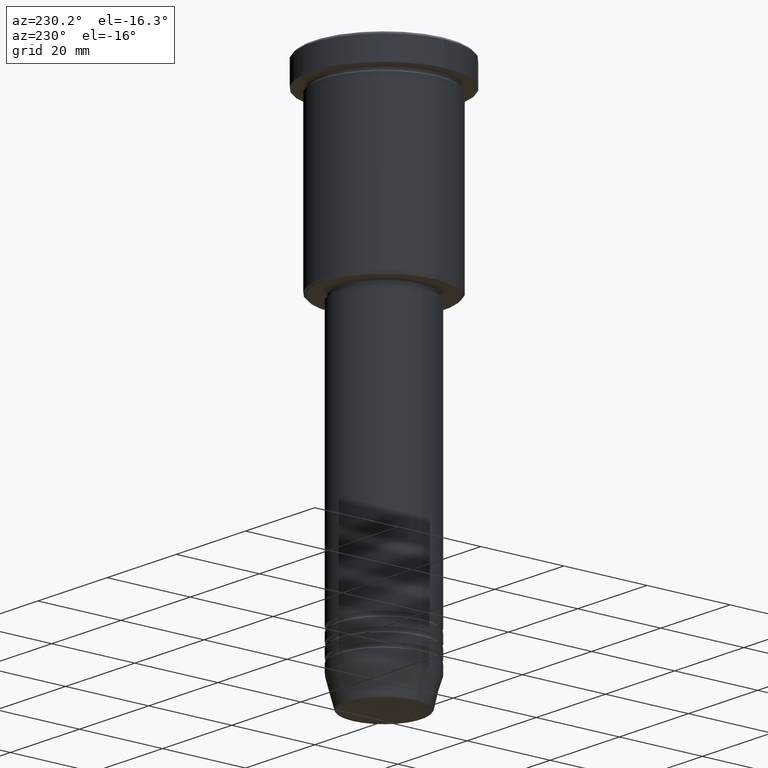
[diagram: clean part render]
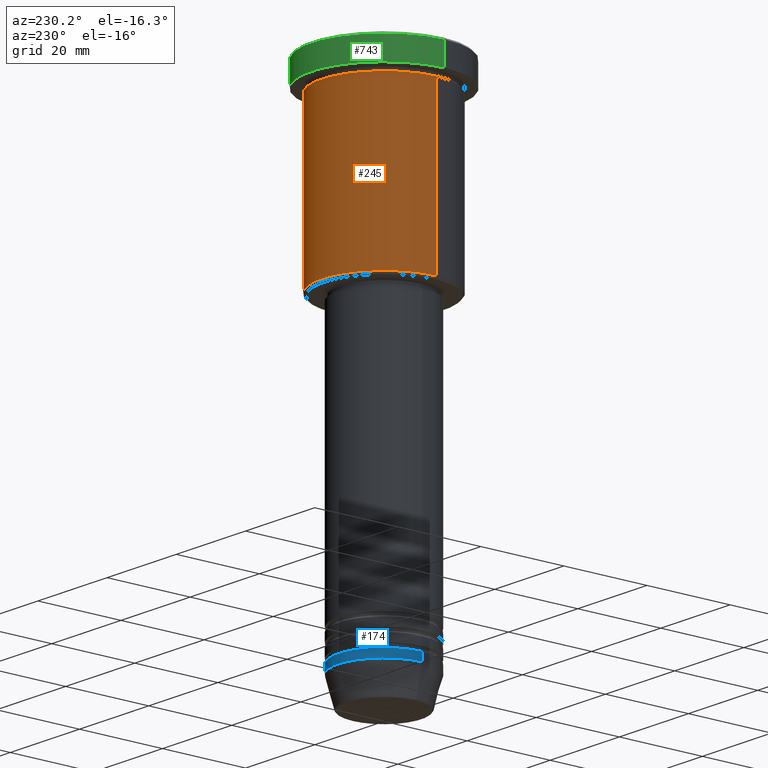
[diagram: same view with three faces highlighted in distinct colors, each labeled with its STEP entity id]
A machine part, auxiliary view with three faces highlighted in distinct colors.
Their STEP definitions:

[orange] entity #245 — the highlighted cylindrical surface (partial cylindrical patch) has radius 15 mm, axis along (-0, -0, 1).
#15 = ORIENTED_EDGE ( 'NONE', *, *, #636, .F. ) ;
#59 = LINE ( 'NONE', #1054, #1060 ) ;
#89 = ORIENTED_EDGE ( 'NONE', *, *, #868, .T. ) ;
#119 = EDGE_LOOP ( 'NONE', ( #140, #89, #552, #15 ) ) ;
#121 = AXIS2_PLACEMENT_3D ( 'NONE', #1122, #483, #783 ) ;
#136 = CYLINDRICAL_SURFACE ( 'NONE', #121, 15.00000000000000000 ) ;
#140 = ORIENTED_EDGE ( 'NONE', *, *, #959, .T. ) ;
#228 = VERTEX_POINT ( 'NONE', #829 ) ;
#245 = ADVANCED_FACE ( 'NONE', ( #449 ), #136, .T. ) ;
#294 = VERTEX_POINT ( 'NONE', #677 ) ;
#296 = CARTESIAN_POINT ( 'NONE',  ( 0.000000000000000000, 0.000000000000000000, -6.999999999999995559 ) ) ;
#419 = DIRECTION ( 'NONE',  ( -0.000000000000000000, -0.000000000000000000, 1.000000000000000000 ) ) ;
#449 = FACE_OUTER_BOUND ( 'NONE', #119, .T. ) ;
#470 = CARTESIAN_POINT ( 'NONE',  ( 15.00000000000000000, 0.000000000000000000, 0.000000000000000000 ) ) ;
#483 = DIRECTION ( 'NONE',  ( -0.000000000000000000, -0.000000000000000000, 1.000000000000000000 ) ) ;
#552 = ORIENTED_EDGE ( 'NONE', *, *, #768, .F. ) ;
#589 = DIRECTION ( 'NONE',  ( 1.000000000000000000, 0.000000000000000000, 0.000000000000000000 ) ) ;
#636 = EDGE_CURVE ( 'NONE', #760, #294, #828, .T. ) ;
#673 = CIRCLE ( 'NONE', #964, 15.00000000000000000 ) ;
#675 = CIRCLE ( 'NONE', #1149, 15.00000000000000000 ) ;
#677 = CARTESIAN_POINT ( 'NONE',  ( 15.00000000000000000, 0.000000000000000000, -6.999999999999995559 ) ) ;
#697 = CARTESIAN_POINT ( 'NONE',  ( -15.00000000000000000, 1.836970198721029589E-15, -6.999999999999995559 ) ) ;
#720 = DIRECTION ( 'NONE',  ( -1.000000000000000000, 0.000000000000000000, 0.000000000000000000 ) ) ;
#745 = VERTEX_POINT ( 'NONE', #697 ) ;
#760 = VERTEX_POINT ( 'NONE', #786 ) ;
#768 = EDGE_CURVE ( 'NONE', #294, #745, #673, .T. ) ;
#783 = DIRECTION ( 'NONE',  ( 1.000000000000000000, 0.000000000000000000, 0.000000000000000000 ) ) ;
#786 = CARTESIAN_POINT ( 'NONE',  ( 15.00000000000000000, 0.000000000000000000, -45.49999999999998579 ) ) ;
#828 = LINE ( 'NONE', #470, #892 ) ;
#829 = CARTESIAN_POINT ( 'NONE',  ( -15.00000000000000000, 1.836970198721029589E-15, -45.49999999999998579 ) ) ;
#868 = EDGE_CURVE ( 'NONE', #228, #745, #59, .T. ) ;
#892 = VECTOR ( 'NONE', #925, 1000.000000000000000 ) ;
#925 = DIRECTION ( 'NONE',  ( -0.000000000000000000, -0.000000000000000000, 1.000000000000000000 ) ) ;
#954 = DIRECTION ( 'NONE',  ( -0.000000000000000000, -0.000000000000000000, 1.000000000000000000 ) ) ;
#959 = EDGE_CURVE ( 'NONE', #760, #228, #675, .T. ) ;
#964 = AXIS2_PLACEMENT_3D ( 'NONE', #296, #954, #589 ) ;
#1054 = CARTESIAN_POINT ( 'NONE',  ( -15.00000000000000000, 1.836970198721029589E-15, 0.000000000000000000 ) ) ;
#1059 = CARTESIAN_POINT ( 'NONE',  ( 0.000000000000000000, 0.000000000000000000, -45.49999999999998579 ) ) ;
#1060 = VECTOR ( 'NONE', #1070, 1000.000000000000000 ) ;
#1070 = DIRECTION ( 'NONE',  ( -0.000000000000000000, -0.000000000000000000, 1.000000000000000000 ) ) ;
#1122 = CARTESIAN_POINT ( 'NONE',  ( 0.000000000000000000, 0.000000000000000000, 0.000000000000000000 ) ) ;
#1149 = AXIS2_PLACEMENT_3D ( 'NONE', #1059, #419, #720 ) ;

[blue] entity #174 — the highlighted cylindrical surface (partial cylindrical patch) has radius 11 mm, axis along (-0, -0, 1).
#77 = AXIS2_PLACEMENT_3D ( 'NONE', #1047, #132, #532 ) ;
#95 = LINE ( 'NONE', #659, #122 ) ;
#122 = VECTOR ( 'NONE', #819, 1000.000000000000000 ) ;
#132 = DIRECTION ( 'NONE',  ( -0.000000000000000000, -0.000000000000000000, 1.000000000000000000 ) ) ;
#142 = CYLINDRICAL_SURFACE ( 'NONE', #77, 11.00000000000000000 ) ;
#165 = LINE ( 'NONE', #531, #1062 ) ;
#174 = ADVANCED_FACE ( 'NONE', ( #1050 ), #142, .T. ) ;
#248 = DIRECTION ( 'NONE',  ( -0.000000000000000000, -0.000000000000000000, 1.000000000000000000 ) ) ;
#271 = DIRECTION ( 'NONE',  ( 1.000000000000000000, 0.000000000000000000, 0.000000000000000000 ) ) ;
#287 = ORIENTED_EDGE ( 'NONE', *, *, #1014, .F. ) ;
#339 = CARTESIAN_POINT ( 'NONE',  ( 0.000000000000000000, 0.000000000000000000, -119.0000000000000000 ) ) ;
#352 = ORIENTED_EDGE ( 'NONE', *, *, #426, .T. ) ;
#376 = CIRCLE ( 'NONE', #411, 11.00000000000000000 ) ;
#381 = ORIENTED_EDGE ( 'NONE', *, *, #610, .T. ) ;
#411 = AXIS2_PLACEMENT_3D ( 'NONE', #994, #1015, #271 ) ;
#426 = EDGE_CURVE ( 'NONE', #1183, #701, #653, .T. ) ;
#531 = CARTESIAN_POINT ( 'NONE',  ( 11.00000000000000000, 0.000000000000000000, 0.000000000000000000 ) ) ;
#532 = DIRECTION ( 'NONE',  ( 1.000000000000000000, 0.000000000000000000, 0.000000000000000000 ) ) ;
#555 = EDGE_CURVE ( 'NONE', #936, #596, #376, .T. ) ;
#596 = VERTEX_POINT ( 'NONE', #1011 ) ;
#610 = EDGE_CURVE ( 'NONE', #701, #596, #95, .T. ) ;
#653 = CIRCLE ( 'NONE', #1079, 11.00000000000000000 ) ;
#659 = CARTESIAN_POINT ( 'NONE',  ( -11.00000000000000000, 1.347111479062088405E-15, 0.000000000000000000 ) ) ;
#696 = EDGE_LOOP ( 'NONE', ( #352, #381, #1175, #287 ) ) ;
#701 = VERTEX_POINT ( 'NONE', #904 ) ;
#819 = DIRECTION ( 'NONE',  ( -0.000000000000000000, -0.000000000000000000, 1.000000000000000000 ) ) ;
#835 = DIRECTION ( 'NONE',  ( -0.000000000000000000, -0.000000000000000000, 1.000000000000000000 ) ) ;
#885 = CARTESIAN_POINT ( 'NONE',  ( 11.00000000000000000, 0.000000000000000000, -117.0000000000000000 ) ) ;
#898 = DIRECTION ( 'NONE',  ( 1.000000000000000000, 0.000000000000000000, 0.000000000000000000 ) ) ;
#904 = CARTESIAN_POINT ( 'NONE',  ( -11.00000000000000000, 1.347111479062088405E-15, -119.0000000000000000 ) ) ;
#936 = VERTEX_POINT ( 'NONE', #885 ) ;
#994 = CARTESIAN_POINT ( 'NONE',  ( 0.000000000000000000, 0.000000000000000000, -117.0000000000000000 ) ) ;
#1011 = CARTESIAN_POINT ( 'NONE',  ( -11.00000000000000000, 1.347111479062088405E-15, -117.0000000000000000 ) ) ;
#1014 = EDGE_CURVE ( 'NONE', #1183, #936, #165, .T. ) ;
#1015 = DIRECTION ( 'NONE',  ( -0.000000000000000000, -0.000000000000000000, 1.000000000000000000 ) ) ;
#1047 = CARTESIAN_POINT ( 'NONE',  ( 0.000000000000000000, 0.000000000000000000, 0.000000000000000000 ) ) ;
#1050 = FACE_OUTER_BOUND ( 'NONE', #696, .T. ) ;
#1062 = VECTOR ( 'NONE', #835, 1000.000000000000000 ) ;
#1079 = AXIS2_PLACEMENT_3D ( 'NONE', #339, #248, #898 ) ;
#1139 = CARTESIAN_POINT ( 'NONE',  ( 11.00000000000000000, 0.000000000000000000, -119.0000000000000000 ) ) ;
#1175 = ORIENTED_EDGE ( 'NONE', *, *, #555, .F. ) ;
#1183 = VERTEX_POINT ( 'NONE', #1139 ) ;

[green] entity #743 — the highlighted cylindrical surface (partial cylindrical patch) has radius 17.5 mm, axis along (-0, -0, 1).
#113 = ORIENTED_EDGE ( 'NONE', *, *, #241, .F. ) ;
#116 = CARTESIAN_POINT ( 'NONE',  ( -17.50000000000000000, 2.143131898507868248E-15, -0.4999999999999864553 ) ) ;
#145 = DIRECTION ( 'NONE',  ( 1.000000000000000000, 0.000000000000000000, 0.000000000000000000 ) ) ;
#178 = CARTESIAN_POINT ( 'NONE',  ( 0.000000000000000000, 0.000000000000000000, -0.4999999999999864553 ) ) ;
#193 = DIRECTION ( 'NONE',  ( -0.000000000000000000, -0.000000000000000000, 1.000000000000000000 ) ) ;
#214 = CARTESIAN_POINT ( 'NONE',  ( -17.50000000000000000, 2.143131898507868248E-15, -5.999999999999995559 ) ) ;
#241 = EDGE_CURVE ( 'NONE', #502, #666, #244, .T. ) ;
#244 = LINE ( 'NONE', #731, #820 ) ;
#306 = FACE_OUTER_BOUND ( 'NONE', #523, .T. ) ;
#316 = VERTEX_POINT ( 'NONE', #214 ) ;
#329 = CARTESIAN_POINT ( 'NONE',  ( 17.50000000000000000, 0.000000000000000000, -5.999999999999995559 ) ) ;
#334 = CIRCLE ( 'NONE', #753, 17.50000000000000000 ) ;
#359 = DIRECTION ( 'NONE',  ( -0.000000000000000000, -0.000000000000000000, 1.000000000000000000 ) ) ;
#408 = CARTESIAN_POINT ( 'NONE',  ( -17.50000000000000000, 2.143131898507868248E-15, 0.000000000000000000 ) ) ;
#482 = CARTESIAN_POINT ( 'NONE',  ( 0.000000000000000000, 0.000000000000000000, 0.000000000000000000 ) ) ;
#502 = VERTEX_POINT ( 'NONE', #329 ) ;
#513 = EDGE_CURVE ( 'NONE', #502, #316, #334, .T. ) ;
#523 = EDGE_LOOP ( 'NONE', ( #990, #834, #530, #113 ) ) ;
#530 = ORIENTED_EDGE ( 'NONE', *, *, #668, .T. ) ;
#533 = CARTESIAN_POINT ( 'NONE',  ( 17.50000000000000000, 0.000000000000000000, -0.4999999999999864553 ) ) ;
#581 = DIRECTION ( 'NONE',  ( 1.000000000000000000, 0.000000000000000000, 0.000000000000000000 ) ) ;
#666 = VERTEX_POINT ( 'NONE', #533 ) ;
#668 = EDGE_CURVE ( 'NONE', #781, #666, #822, .T. ) ;
#710 = DIRECTION ( 'NONE',  ( -0.000000000000000000, -0.000000000000000000, 1.000000000000000000 ) ) ;
#731 = CARTESIAN_POINT ( 'NONE',  ( 17.50000000000000000, 0.000000000000000000, 0.000000000000000000 ) ) ;
#732 = AXIS2_PLACEMENT_3D ( 'NONE', #178, #748, #758 ) ;
#743 = ADVANCED_FACE ( 'NONE', ( #306 ), #951, .T. ) ;
#748 = DIRECTION ( 'NONE',  ( 0.000000000000000000, 0.000000000000000000, -1.000000000000000000 ) ) ;
#753 = AXIS2_PLACEMENT_3D ( 'NONE', #816, #710, #145 ) ;
#758 = DIRECTION ( 'NONE',  ( 1.000000000000000000, 0.000000000000000000, 0.000000000000000000 ) ) ;
#781 = VERTEX_POINT ( 'NONE', #116 ) ;
#785 = EDGE_CURVE ( 'NONE', #316, #781, #862, .T. ) ;
#805 = VECTOR ( 'NONE', #193, 1000.000000000000000 ) ;
#816 = CARTESIAN_POINT ( 'NONE',  ( 0.000000000000000000, 0.000000000000000000, -5.999999999999995559 ) ) ;
#820 = VECTOR ( 'NONE', #359, 1000.000000000000000 ) ;
#822 = CIRCLE ( 'NONE', #732, 17.50000000000000000 ) ;
#834 = ORIENTED_EDGE ( 'NONE', *, *, #785, .T. ) ;
#842 = AXIS2_PLACEMENT_3D ( 'NONE', #482, #865, #581 ) ;
#862 = LINE ( 'NONE', #408, #805 ) ;
#865 = DIRECTION ( 'NONE',  ( -0.000000000000000000, -0.000000000000000000, 1.000000000000000000 ) ) ;
#951 = CYLINDRICAL_SURFACE ( 'NONE', #842, 17.50000000000000000 ) ;
#990 = ORIENTED_EDGE ( 'NONE', *, *, #513, .T. ) ;